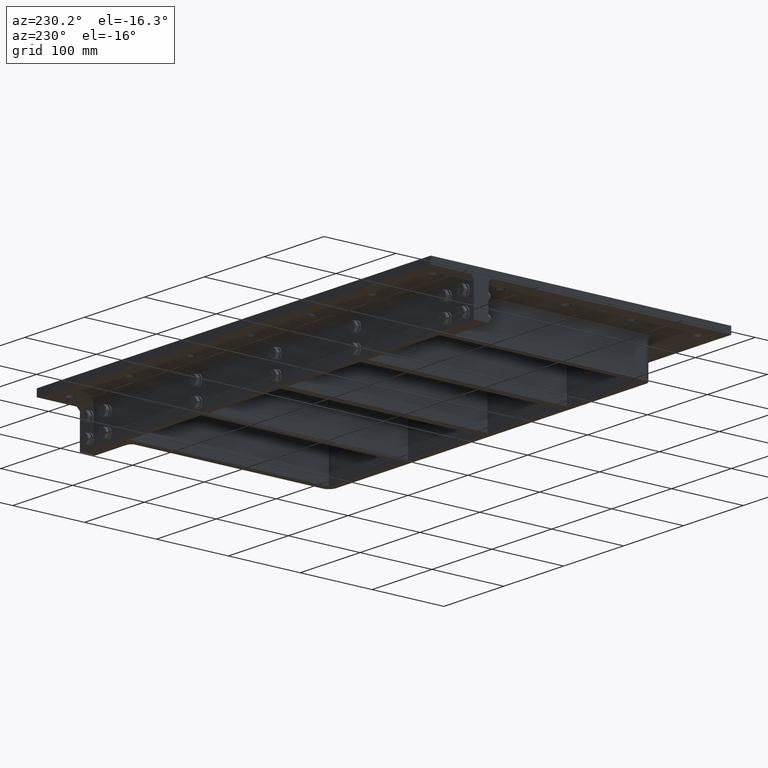
[diagram: clean part render]
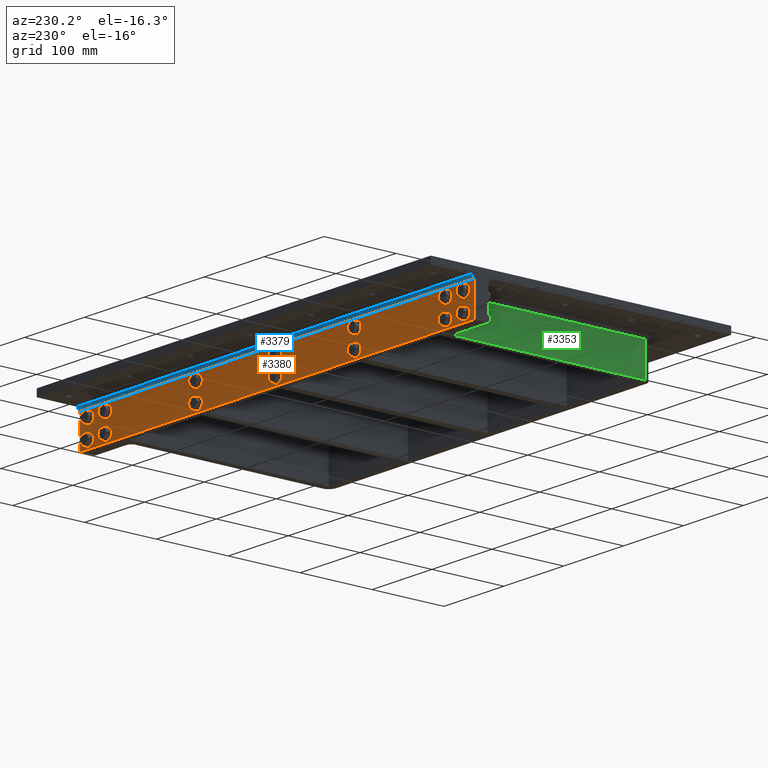
[diagram: same view with three faces highlighted in distinct colors, each labeled with its STEP entity id]
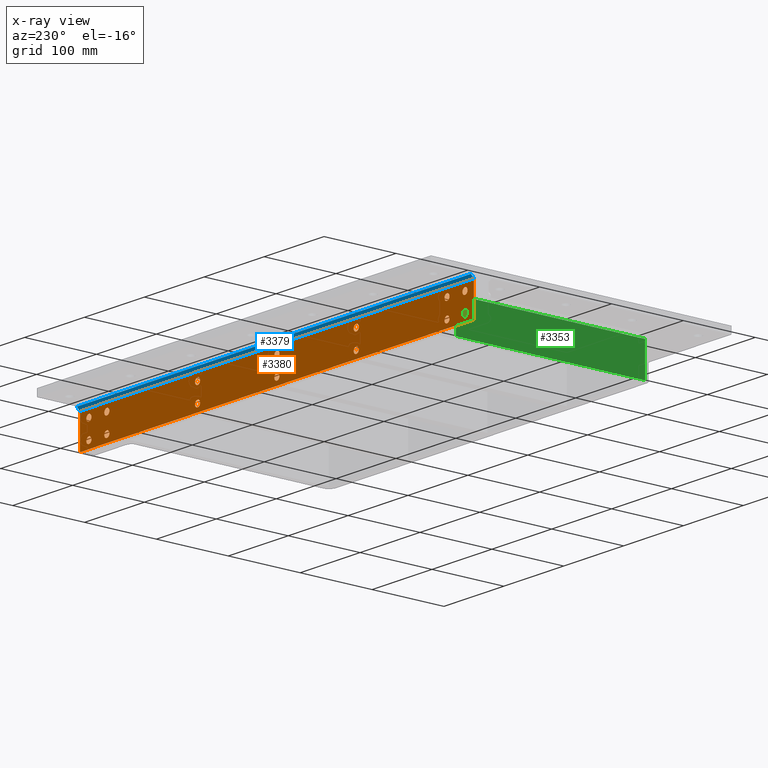
[diagram: x-ray of the same camera — body ghosted, the three highlighted faces saturated]
A machine part, auxiliary view with three faces highlighted in distinct colors.
The next image is the same camera in x-ray (body ghosted, the three faces saturated) — at least one of them is partly hidden behind the body in this view.
Their STEP definitions:

[orange] entity #3380 — the highlighted planar face has unit normal (-0, 1, 0).
#321=FACE_BOUND('',#869,.T.);
#322=FACE_BOUND('',#870,.T.);
#323=FACE_BOUND('',#871,.T.);
#324=FACE_BOUND('',#872,.T.);
#325=FACE_BOUND('',#873,.T.);
#326=FACE_BOUND('',#874,.T.);
#327=FACE_BOUND('',#875,.T.);
#328=FACE_BOUND('',#876,.T.);
#329=FACE_BOUND('',#877,.T.);
#330=FACE_BOUND('',#878,.T.);
#331=FACE_BOUND('',#879,.T.);
#332=FACE_BOUND('',#880,.T.);
#333=FACE_BOUND('',#881,.T.);
#334=FACE_BOUND('',#882,.T.);
#447=CIRCLE('',#3837,4.25000000000007);
#448=CIRCLE('',#3838,4.25000000000007);
#449=CIRCLE('',#3839,4.25000000000007);
#450=CIRCLE('',#3840,4.25000000000007);
#451=CIRCLE('',#3841,4.25000000000007);
#452=CIRCLE('',#3842,4.25000000000007);
#453=CIRCLE('',#3843,4.25000000000007);
#454=CIRCLE('',#3844,4.25000000000007);
#455=CIRCLE('',#3845,4.25);
#456=CIRCLE('',#3846,4.25);
#457=CIRCLE('',#3847,4.25);
#458=CIRCLE('',#3848,4.25);
#459=CIRCLE('',#3849,4.25);
#460=CIRCLE('',#3850,4.25);
#639=FACE_OUTER_BOUND('',#868,.T.);
#868=EDGE_LOOP('',(#2691,#2692,#2693,#2694));
#869=EDGE_LOOP('',(#2695));
#870=EDGE_LOOP('',(#2696));
#871=EDGE_LOOP('',(#2697));
#872=EDGE_LOOP('',(#2698));
#873=EDGE_LOOP('',(#2699));
#874=EDGE_LOOP('',(#2700));
#875=EDGE_LOOP('',(#2701));
#876=EDGE_LOOP('',(#2702));
#877=EDGE_LOOP('',(#2703));
#878=EDGE_LOOP('',(#2704));
#879=EDGE_LOOP('',(#2705));
#880=EDGE_LOOP('',(#2706));
#881=EDGE_LOOP('',(#2707));
#882=EDGE_LOOP('',(#2708));
#1181=LINE('',#5487,#1442);
#1184=LINE('',#5493,#1445);
#1185=LINE('',#5495,#1446);
#1186=LINE('',#5496,#1447);
#1442=VECTOR('',#4475,10.);
#1445=VECTOR('',#4480,10.);
#1446=VECTOR('',#4481,10.);
#1447=VECTOR('',#4482,10.);
#1695=VERTEX_POINT('',#5484);
#1696=VERTEX_POINT('',#5486);
#1698=VERTEX_POINT('',#5492);
#1699=VERTEX_POINT('',#5494);
#1700=VERTEX_POINT('',#5497);
#1701=VERTEX_POINT('',#5499);
#1702=VERTEX_POINT('',#5501);
#1703=VERTEX_POINT('',#5503);
#1704=VERTEX_POINT('',#5505);
#1705=VERTEX_POINT('',#5507);
#1706=VERTEX_POINT('',#5509);
#1707=VERTEX_POINT('',#5511);
#1708=VERTEX_POINT('',#5513);
#1709=VERTEX_POINT('',#5515);
#1710=VERTEX_POINT('',#5517);
#1711=VERTEX_POINT('',#5519);
#1712=VERTEX_POINT('',#5521);
#1713=VERTEX_POINT('',#5523);
#2052=EDGE_CURVE('',#1695,#1696,#1181,.T.);
#2055=EDGE_CURVE('',#1695,#1698,#1184,.T.);
#2056=EDGE_CURVE('',#1699,#1698,#1185,.T.);
#2057=EDGE_CURVE('',#1696,#1699,#1186,.T.);
#2058=EDGE_CURVE('',#1700,#1700,#447,.T.);
#2059=EDGE_CURVE('',#1701,#1701,#448,.T.);
#2060=EDGE_CURVE('',#1702,#1702,#449,.T.);
#2061=EDGE_CURVE('',#1703,#1703,#450,.T.);
#2062=EDGE_CURVE('',#1704,#1704,#451,.T.);
#2063=EDGE_CURVE('',#1705,#1705,#452,.T.);
#2064=EDGE_CURVE('',#1706,#1706,#453,.T.);
#2065=EDGE_CURVE('',#1707,#1707,#454,.T.);
#2066=EDGE_CURVE('',#1708,#1708,#455,.T.);
#2067=EDGE_CURVE('',#1709,#1709,#456,.T.);
#2068=EDGE_CURVE('',#1710,#1710,#457,.T.);
#2069=EDGE_CURVE('',#1711,#1711,#458,.T.);
#2070=EDGE_CURVE('',#1712,#1712,#459,.T.);
#2071=EDGE_CURVE('',#1713,#1713,#460,.T.);
#2691=ORIENTED_EDGE('',*,*,#2052,.F.);
#2692=ORIENTED_EDGE('',*,*,#2055,.T.);
#2693=ORIENTED_EDGE('',*,*,#2056,.F.);
#2694=ORIENTED_EDGE('',*,*,#2057,.F.);
#2695=ORIENTED_EDGE('',*,*,#2058,.T.);
#2696=ORIENTED_EDGE('',*,*,#2059,.T.);
#2697=ORIENTED_EDGE('',*,*,#2060,.T.);
#2698=ORIENTED_EDGE('',*,*,#2061,.T.);
#2699=ORIENTED_EDGE('',*,*,#2062,.T.);
#2700=ORIENTED_EDGE('',*,*,#2063,.T.);
#2701=ORIENTED_EDGE('',*,*,#2064,.T.);
#2702=ORIENTED_EDGE('',*,*,#2065,.T.);
#2703=ORIENTED_EDGE('',*,*,#2066,.T.);
#2704=ORIENTED_EDGE('',*,*,#2067,.T.);
#2705=ORIENTED_EDGE('',*,*,#2068,.T.);
#2706=ORIENTED_EDGE('',*,*,#2069,.T.);
#2707=ORIENTED_EDGE('',*,*,#2070,.T.);
#2708=ORIENTED_EDGE('',*,*,#2071,.T.);
#3253=PLANE('',#3836);
#3380=ADVANCED_FACE('',(#639,#321,#322,#323,#324,#325,#326,#327,#328,#329,
#330,#331,#332,#333,#334),#3253,.T.);
#3836=AXIS2_PLACEMENT_3D('',#5491,#4478,#4479);
#3837=AXIS2_PLACEMENT_3D('',#5498,#4483,#4484);
#3838=AXIS2_PLACEMENT_3D('',#5500,#4485,#4486);
#3839=AXIS2_PLACEMENT_3D('',#5502,#4487,#4488);
#3840=AXIS2_PLACEMENT_3D('',#5504,#4489,#4490);
#3841=AXIS2_PLACEMENT_3D('',#5506,#4491,#4492);
#3842=AXIS2_PLACEMENT_3D('',#5508,#4493,#4494);
#3843=AXIS2_PLACEMENT_3D('',#5510,#4495,#4496);
#3844=AXIS2_PLACEMENT_3D('',#5512,#4497,#4498);
#3845=AXIS2_PLACEMENT_3D('',#5514,#4499,#4500);
#3846=AXIS2_PLACEMENT_3D('',#5516,#4501,#4502);
#3847=AXIS2_PLACEMENT_3D('',#5518,#4503,#4504);
#3848=AXIS2_PLACEMENT_3D('',#5520,#4505,#4506);
#3849=AXIS2_PLACEMENT_3D('',#5522,#4507,#4508);
#3850=AXIS2_PLACEMENT_3D('',#5524,#4509,#4510);
#4475=DIRECTION('',(-1.,-1.02877809231675E-16,0.));
#4478=DIRECTION('center_axis',(-1.02877809231675E-16,1.,0.));
#4479=DIRECTION('ref_axis',(1.,1.02877809231675E-16,0.));
#4480=DIRECTION('',(0.,0.,-1.));
#4481=DIRECTION('',(1.,1.07985218200623E-16,0.));
#4482=DIRECTION('',(0.,0.,-1.));
#4483=DIRECTION('center_axis',(1.02877809231675E-16,-1.,0.));
#4484=DIRECTION('ref_axis',(-1.,0.,0.));
#4485=DIRECTION('center_axis',(1.02877809231675E-16,-1.,0.));
#4486=DIRECTION('ref_axis',(-1.,0.,0.));
#4487=DIRECTION('center_axis',(1.02877809231675E-16,-1.,0.));
#4488=DIRECTION('ref_axis',(-1.,0.,0.));
#4489=DIRECTION('center_axis',(1.02877809231675E-16,-1.,0.));
#4490=DIRECTION('ref_axis',(-1.,0.,0.));
#4491=DIRECTION('center_axis',(1.02877809231675E-16,-1.,0.));
#4492=DIRECTION('ref_axis',(-1.,0.,0.));
#4493=DIRECTION('center_axis',(1.02877809231675E-16,-1.,0.));
#4494=DIRECTION('ref_axis',(-1.,0.,0.));
#4495=DIRECTION('center_axis',(1.02877809231675E-16,-1.,0.));
#4496=DIRECTION('ref_axis',(-1.,0.,0.));
#4497=DIRECTION('center_axis',(1.02877809231675E-16,-1.,0.));
#4498=DIRECTION('ref_axis',(-1.,0.,0.));
#4499=DIRECTION('center_axis',(1.02877809231675E-16,-1.,0.));
#4500=DIRECTION('ref_axis',(-1.,0.,0.));
#4501=DIRECTION('center_axis',(1.02877809231675E-16,-1.,0.));
#4502=DIRECTION('ref_axis',(-1.,0.,0.));
#4503=DIRECTION('center_axis',(1.02877809231675E-16,-1.,0.));
#4504=DIRECTION('ref_axis',(-1.,0.,0.));
#4505=DIRECTION('center_axis',(1.02877809231675E-16,-1.,0.));
#4506=DIRECTION('ref_axis',(-1.,0.,0.));
#4507=DIRECTION('center_axis',(1.02877809231675E-16,-1.,0.));
#4508=DIRECTION('ref_axis',(-1.,0.,0.));
#4509=DIRECTION('center_axis',(1.02877809231675E-16,-1.,0.));
#4510=DIRECTION('ref_axis',(-1.,0.,0.));
#5484=CARTESIAN_POINT('',(329.,149.,-14.3));
#5486=CARTESIAN_POINT('',(-329.,149.,-14.3));
#5487=CARTESIAN_POINT('',(-129.5,149.,-14.3));
#5491=CARTESIAN_POINT('Origin',(-259.,149.,0.));
#5492=CARTESIAN_POINT('',(329.,149.,-60.));
#5493=CARTESIAN_POINT('',(329.,149.,0.));
#5494=CARTESIAN_POINT('',(-329.,149.,-60.));
#5495=CARTESIAN_POINT('',(-329.,149.,-60.));
#5496=CARTESIAN_POINT('',(-329.,149.,0.));
#5497=CARTESIAN_POINT('',(-309.75,149.,-50.));
#5498=CARTESIAN_POINT('Origin',(-314.,149.,-50.));
#5499=CARTESIAN_POINT('',(-279.75,149.,-50.));
#5500=CARTESIAN_POINT('Origin',(-284.,149.,-50.));
#5501=CARTESIAN_POINT('',(288.25,149.,-50.));
#5502=CARTESIAN_POINT('Origin',(284.,149.,-50.));
#5503=CARTESIAN_POINT('',(318.25,149.,-25.));
#5504=CARTESIAN_POINT('Origin',(314.,149.,-25.));
#5505=CARTESIAN_POINT('',(288.25,149.,-25.));
#5506=CARTESIAN_POINT('Origin',(284.,149.,-25.));
#5507=CARTESIAN_POINT('',(318.25,149.,-50.));
#5508=CARTESIAN_POINT('Origin',(314.,149.,-50.));
#5509=CARTESIAN_POINT('',(-279.75,149.,-25.));
#5510=CARTESIAN_POINT('Origin',(-284.,149.,-25.));
#5511=CARTESIAN_POINT('',(-309.75,149.,-25.));
#5512=CARTESIAN_POINT('Origin',(-314.,149.,-25.));
#5513=CARTESIAN_POINT('',(136.75,149.,-50.));
#5514=CARTESIAN_POINT('Origin',(132.5,149.,-50.));
#5515=CARTESIAN_POINT('',(136.75,149.,-25.));
#5516=CARTESIAN_POINT('Origin',(132.5,149.,-25.));
#5517=CARTESIAN_POINT('',(4.25000000000002,149.,-50.));
#5518=CARTESIAN_POINT('Origin',(1.77635683940025E-14,149.,-50.));
#5519=CARTESIAN_POINT('',(4.25000000000002,149.,-25.));
#5520=CARTESIAN_POINT('Origin',(1.77635683940025E-14,149.,-25.));
#5521=CARTESIAN_POINT('',(-128.25,149.,-50.));
#5522=CARTESIAN_POINT('Origin',(-132.5,149.,-50.));
#5523=CARTESIAN_POINT('',(-128.25,149.,-25.));
#5524=CARTESIAN_POINT('Origin',(-132.5,149.,-25.));

[blue] entity #3379 — the highlighted planar face has unit normal (-0, 0.7071, -0.7071).
#638=FACE_OUTER_BOUND('',#867,.T.);
#867=EDGE_LOOP('',(#2687,#2688,#2689,#2690));
#1180=LINE('',#5485,#1441);
#1181=LINE('',#5487,#1442);
#1182=LINE('',#5489,#1443);
#1183=LINE('',#5490,#1444);
#1441=VECTOR('',#4474,10.);
#1442=VECTOR('',#4475,10.);
#1443=VECTOR('',#4476,10.);
#1444=VECTOR('',#4477,10.);
#1694=VERTEX_POINT('',#5483);
#1695=VERTEX_POINT('',#5484);
#1696=VERTEX_POINT('',#5486);
#1697=VERTEX_POINT('',#5488);
#2051=EDGE_CURVE('',#1694,#1695,#1180,.T.);
#2052=EDGE_CURVE('',#1695,#1696,#1181,.T.);
#2053=EDGE_CURVE('',#1696,#1697,#1182,.T.);
#2054=EDGE_CURVE('',#1697,#1694,#1183,.T.);
#2687=ORIENTED_EDGE('',*,*,#2051,.T.);
#2688=ORIENTED_EDGE('',*,*,#2052,.T.);
#2689=ORIENTED_EDGE('',*,*,#2053,.T.);
#2690=ORIENTED_EDGE('',*,*,#2054,.T.);
#3252=PLANE('',#3835);
#3379=ADVANCED_FACE('',(#638),#3252,.T.);
#3835=AXIS2_PLACEMENT_3D('',#5482,#4472,#4473);
#4472=DIRECTION('center_axis',(-7.27455965413331E-17,0.707106781186546,
-0.707106781186549));
#4473=DIRECTION('ref_axis',(-1.,0.,1.02877809231674E-16));
#4474=DIRECTION('',(1.20198465736557E-16,-0.707106781186549,-0.707106781186546));
#4475=DIRECTION('',(-1.,-1.02877809231675E-16,0.));
#4476=DIRECTION('',(-3.60595397209672E-16,0.707106781186549,0.707106781186546));
#4477=DIRECTION('',(1.,1.02877809231675E-16,0.));
#5482=CARTESIAN_POINT('Origin',(-129.5,151.15,-12.15));
#5483=CARTESIAN_POINT('',(329.,153.3,-10.));
#5484=CARTESIAN_POINT('',(329.,149.,-14.3));
#5485=CARTESIAN_POINT('',(329.,168.65,5.34999999999997));
#5486=CARTESIAN_POINT('',(-329.,149.,-14.3));
#5487=CARTESIAN_POINT('',(-129.5,149.,-14.3));
#5488=CARTESIAN_POINT('',(-329.,153.3,-10.));
#5489=CARTESIAN_POINT('',(-329.,64.1499999999996,-99.15));
#5490=CARTESIAN_POINT('',(-129.5,153.3,-10.));

[green] entity #3353 — the highlighted planar face has unit normal (-1, 0, 0).
#612=FACE_OUTER_BOUND('',#841,.T.);
#841=EDGE_LOOP('',(#2583,#2584,#2585,#2586));
#1057=LINE('',#5120,#1318);
#1071=LINE('',#5155,#1332);
#1130=LINE('',#5355,#1391);
#1160=LINE('',#5436,#1421);
#1318=VECTOR('',#4101,10.);
#1332=VECTOR('',#4135,10.);
#1391=VECTOR('',#4322,10.);
#1421=VECTOR('',#4400,10.);
#1573=VERTEX_POINT('',#5105);
#1578=VERTEX_POINT('',#5118);
#1589=VERTEX_POINT('',#5149);
#1666=VERTEX_POINT('',#5353);
#1872=EDGE_CURVE('',#1578,#1573,#1057,.T.);
#1890=EDGE_CURVE('',#1573,#1589,#1071,.T.);
#1988=EDGE_CURVE('',#1666,#1578,#1130,.T.);
#2031=EDGE_CURVE('',#1589,#1666,#1160,.T.);
#2583=ORIENTED_EDGE('',*,*,#1872,.F.);
#2584=ORIENTED_EDGE('',*,*,#1988,.F.);
#2585=ORIENTED_EDGE('',*,*,#2031,.F.);
#2586=ORIENTED_EDGE('',*,*,#1890,.F.);
#3241=PLANE('',#3808);
#3353=ADVANCED_FACE('',(#612),#3241,.T.);
#3808=AXIS2_PLACEMENT_3D('',#5435,#4398,#4399);
#4101=DIRECTION('',(0.,0.,1.));
#4135=DIRECTION('',(-1.2779545607196E-16,-1.,0.));
#4322=DIRECTION('',(1.2779545607196E-16,1.,0.));
#4398=DIRECTION('center_axis',(-1.,1.2779545607196E-16,0.));
#4399=DIRECTION('ref_axis',(1.2779545607196E-16,1.,0.));
#4400=DIRECTION('',(0.,0.,-1.));
#5105=CARTESIAN_POINT('',(-269.,124.2,-14.3));
#5118=CARTESIAN_POINT('',(-269.,124.2,-60.));
#5120=CARTESIAN_POINT('',(-269.,124.2,0.));
#5149=CARTESIAN_POINT('',(-269.,-139.,-14.3));
#5155=CARTESIAN_POINT('',(-269.,-69.5000000000001,-14.3));
#5353=CARTESIAN_POINT('',(-269.,-139.,-60.));
#5355=CARTESIAN_POINT('',(-269.,139.,-60.));
#5435=CARTESIAN_POINT('Origin',(-269.,-139.,0.));
#5436=CARTESIAN_POINT('',(-269.,-139.,0.));